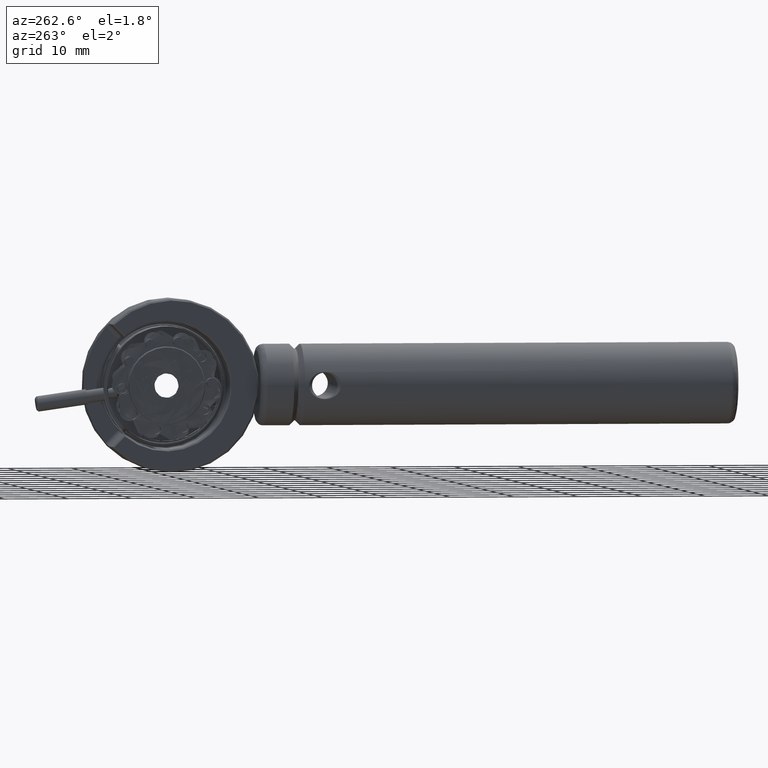
[diagram: clean part render]
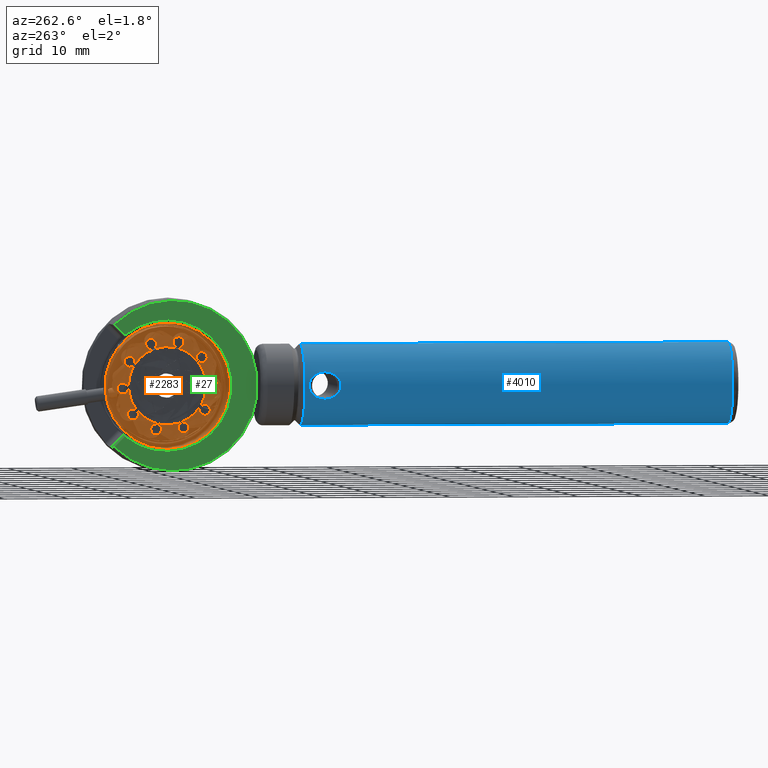
[diagram: same view with three faces highlighted in distinct colors, each labeled with its STEP entity id]
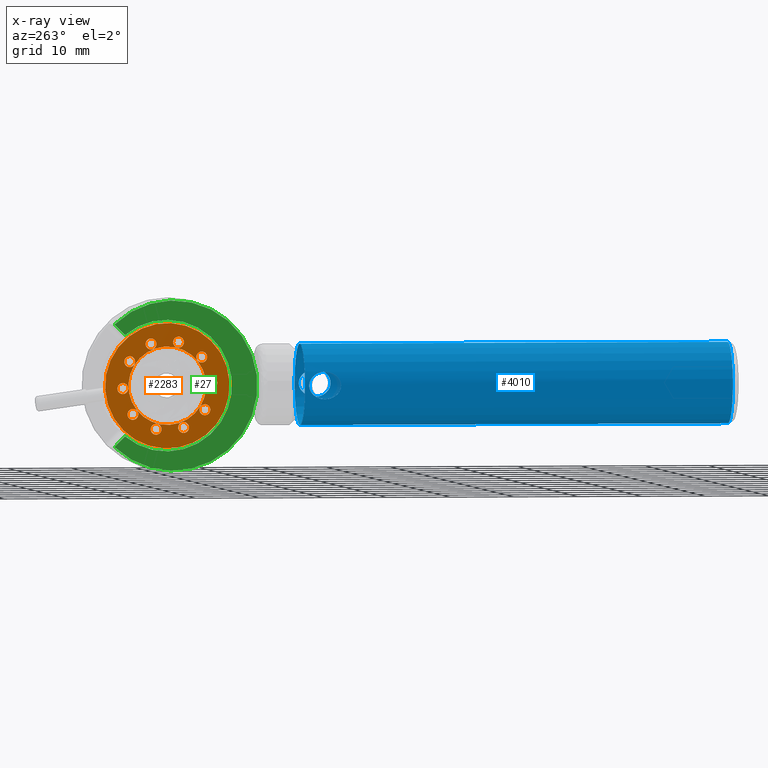
[diagram: x-ray of the same camera — body ghosted, the three highlighted faces saturated]
A machine part, auxiliary view with three faces highlighted in distinct colors.
The next image is the same camera in x-ray (body ghosted, the three faces saturated) — at least one of them is partly hidden behind the body in this view.
Their STEP definitions:

[orange] entity #2283 — the highlighted planar face has unit normal (1, 0, 0).
#59 = VERTEX_POINT ( 'NONE', #5542 ) ;
#128 = CIRCLE ( 'NONE', #365, 0.8499999999611640433 ) ;
#365 = AXIS2_PLACEMENT_3D ( 'NONE', #11731, #2733, #10845 ) ;
#640 = EDGE_LOOP ( 'NONE', ( #5820 ) ) ;
#892 = EDGE_CURVE ( 'NONE', #1799, #1799, #4693, .T. ) ;
#928 = ORIENTED_EDGE ( 'NONE', *, *, #7380, .T. ) ;
#1171 = DIRECTION ( 'NONE',  ( 0.000000000000000000, 0.06016631361091241692, 0.9981883663449866440 ) ) ;
#1173 = EDGE_CURVE ( 'NONE', #9078, #9078, #1439, .T. ) ;
#1184 = DIRECTION ( 'NONE',  ( 0.000000000000000000, 0.06016631361091307612, 0.9981883663449867550 ) ) ;
#1208 = VERTEX_POINT ( 'NONE', #11323 ) ;
#1439 = CIRCLE ( 'NONE', #9259, 0.8500000000140057743 ) ;
#1498 = CIRCLE ( 'NONE', #6652, 0.8499999999260764438 ) ;
#1773 = VERTEX_POINT ( 'NONE', #4178 ) ;
#1799 = VERTEX_POINT ( 'NONE', #5447 ) ;
#1887 = CIRCLE ( 'NONE', #11211, 9.775000000000005684 ) ;
#2065 = CIRCLE ( 'NONE', #11009, 0.8500000000140057743 ) ;
#2067 = VERTEX_POINT ( 'NONE', #3808 ) ;
#2082 = CIRCLE ( 'NONE', #9124, 0.8500000000140057743 ) ;
#2158 = ORIENTED_EDGE ( 'NONE', *, *, #6572, .T. ) ;
#2207 = DIRECTION ( 'NONE',  ( 0.000000000000000000, 0.06016631361091291652, 0.9981883663449865329 ) ) ;
#2283 = ADVANCED_FACE ( 'NONE', ( #3375, #10829, #7015, #11481, #10647, #4397, #2482, #8036, #5110, #6238, #8092, #7077 ), #2663, .T. ) ;
#2482 = FACE_BOUND ( 'NONE', #3494, .T. ) ;
#2483 = DIRECTION ( 'NONE',  ( -1.000000000000000000, -1.399727883735550094E-17, -1.375382564234869832E-17 ) ) ;
#2484 = ORIENTED_EDGE ( 'NONE', *, *, #892, .T. ) ;
#2576 = DIRECTION ( 'NONE',  ( -1.000000000000000000, -1.399727883735550094E-17, -1.375382564234869832E-17 ) ) ;
#2663 = PLANE ( 'NONE',  #4114 ) ;
#2733 = DIRECTION ( 'NONE',  ( -1.000000000000000000, -1.399727883735550094E-17, -1.375382564234869832E-17 ) ) ;
#2783 = VERTEX_POINT ( 'NONE', #8405 ) ;
#2894 = DIRECTION ( 'NONE',  ( -1.000000000000000000, -1.399727883735550094E-17, -1.375382564234869832E-17 ) ) ;
#2976 = CARTESIAN_POINT ( 'NONE',  ( 3.134389209405178622, 11.92269437540613808, -30.57200995708458180 ) ) ;
#3260 = ORIENTED_EDGE ( 'NONE', *, *, #1173, .T. ) ;
#3375 = FACE_OUTER_BOUND ( 'NONE', #6702, .T. ) ;
#3396 = AXIS2_PLACEMENT_3D ( 'NONE', #5763, #9277, #1171 ) ;
#3494 = EDGE_LOOP ( 'NONE', ( #10077 ) ) ;
#3497 = VERTEX_POINT ( 'NONE', #4520 ) ;
#3540 = AXIS2_PLACEMENT_3D ( 'NONE', #3987, #9353, #1184 ) ;
#3607 = EDGE_CURVE ( 'NONE', #1208, #1208, #5298, .T. ) ;
#3640 = EDGE_LOOP ( 'NONE', ( #2484 ) ) ;
#3696 = ORIENTED_EDGE ( 'NONE', *, *, #8892, .T. ) ;
#3808 = CARTESIAN_POINT ( 'NONE',  ( 3.134389209462022041, -0.9138963889442193178, -33.06869946432044571 ) ) ;
#3981 = EDGE_LOOP ( 'NONE', ( #928 ) ) ;
#3987 = CARTESIAN_POINT ( 'NONE',  ( 3.134389209405178622, 4.935375810991229351, -30.15084576180819198 ) ) ;
#4114 = AXIS2_PLACEMENT_3D ( 'NONE', #6121, #9749, #8863 ) ;
#4144 = AXIS2_PLACEMENT_3D ( 'NONE', #7133, #2483, #5295 ) ;
#4178 = CARTESIAN_POINT ( 'NONE',  ( 3.134389209459747860, -4.821915470031020945, -29.56272004626151784 ) ) ;
#4397 = FACE_BOUND ( 'NONE', #9298, .T. ) ;
#4404 = CARTESIAN_POINT ( 'NONE',  ( 3.134389209405178622, -2.000801386853559016, -28.88122145512458161 ) ) ;
#4520 = CARTESIAN_POINT ( 'NONE',  ( 3.134389209401191145, 2.426766043697826891, -35.81757360875523943 ) ) ;
#4681 = CARTESIAN_POINT ( 'NONE',  ( 3.134389209462022041, -0.9650377555090479120, -33.91715957563989292 ) ) ;
#4690 = CARTESIAN_POINT ( 'NONE',  ( 3.134389209409193633, 3.176726581823249074, -23.37536401592864976 ) ) ;
#4693 = CIRCLE ( 'NONE', #3540, 6.100000000003546141 ) ;
#4730 = AXIS2_PLACEMENT_3D ( 'NONE', #7491, #2894, #8394 ) ;
#4741 = CIRCLE ( 'NONE', #3396, 0.8500000000708480830 ) ;
#4796 = CARTESIAN_POINT ( 'NONE',  ( 3.134389209405178622, 11.97383574197625755, -29.72354984567736480 ) ) ;
#4911 = CIRCLE ( 'NONE', #9841, 0.8500000000140057743 ) ;
#4943 = EDGE_LOOP ( 'NONE', ( #3696 ) ) ;
#5110 = FACE_BOUND ( 'NONE', #5137, .T. ) ;
#5137 = EDGE_LOOP ( 'NONE', ( #10838 ) ) ;
#5295 = DIRECTION ( 'NONE',  ( 0.000000000000000000, 0.06016631361091238223, 0.9981883663449866440 ) ) ;
#5298 = CIRCLE ( 'NONE', #4730, 0.8500000000140057743 ) ;
#5343 = CARTESIAN_POINT ( 'NONE',  ( 3.134389209459747860, 4.935375810991229351, -30.15084576180819198 ) ) ;
#5447 = CARTESIAN_POINT ( 'NONE',  ( 3.134389209405178622, 5.302390324018012357, -24.06189672710023331 ) ) ;
#5468 = DIRECTION ( 'NONE',  ( -1.000000000000000000, -1.399727883735550094E-17, -1.375382564234869832E-17 ) ) ;
#5491 = CIRCLE ( 'NONE', #8899, 0.8500000000140057743 ) ;
#5542 = CARTESIAN_POINT ( 'NONE',  ( 3.134389209436344359, -0.4187881833848083324, -24.85461385376765975 ) ) ;
#5662 = EDGE_CURVE ( 'NONE', #5689, #5689, #2082, .T. ) ;
#5689 = VERTEX_POINT ( 'NONE', #4796 ) ;
#5733 = DIRECTION ( 'NONE',  ( 0.000000000000000000, 0.06016631361091342306, 0.9981883663449865329 ) ) ;
#5763 = CARTESIAN_POINT ( 'NONE',  ( 3.134389209430813228, 10.34068117193742076, -34.59861755844146813 ) ) ;
#5795 = CARTESIAN_POINT ( 'NONE',  ( 3.134389209401191145, 2.375624677127708306, -36.66603372016245999 ) ) ;
#5820 = ORIENTED_EDGE ( 'NONE', *, *, #7873, .T. ) ;
#5908 = DIRECTION ( 'NONE',  ( -1.000000000000000000, -1.399727883735550094E-17, -1.375382564234869832E-17 ) ) ;
#6030 = ORIENTED_EDGE ( 'NONE', *, *, #8260, .T. ) ;
#6121 = CARTESIAN_POINT ( 'NONE',  ( 3.134389209459748304, 4.935375810991229351, -30.15084576180819198 ) ) ;
#6238 = FACE_BOUND ( 'NONE', #7110, .T. ) ;
#6265 = ORIENTED_EDGE ( 'NONE', *, *, #5662, .T. ) ;
#6572 = EDGE_CURVE ( 'NONE', #1773, #1773, #1887, .T. ) ;
#6619 = DIRECTION ( 'NONE',  ( -1.000000000000000000, -1.399727883735550094E-17, -1.375382564234869832E-17 ) ) ;
#6652 = AXIS2_PLACEMENT_3D ( 'NONE', #4681, #7250, #9091 ) ;
#6702 = EDGE_LOOP ( 'NONE', ( #2158 ) ) ;
#6746 = ORIENTED_EDGE ( 'NONE', *, *, #8272, .T. ) ;
#6804 = DIRECTION ( 'NONE',  ( 0.000000000000000000, 0.06016631361091291652, 0.9981883663449865329 ) ) ;
#7015 = FACE_BOUND ( 'NONE', #640, .T. ) ;
#7077 = FACE_BOUND ( 'NONE', #4943, .T. ) ;
#7082 = VERTEX_POINT ( 'NONE', #4404 ) ;
#7110 = EDGE_LOOP ( 'NONE', ( #3260 ) ) ;
#7133 = CARTESIAN_POINT ( 'NONE',  ( 3.134389209493147366, 10.83578937749153681, -26.38453194797653367 ) ) ;
#7193 = DIRECTION ( 'NONE',  ( 0.000000000000000000, 0.06016631361091291652, 0.9981883663449865329 ) ) ;
#7204 = ORIENTED_EDGE ( 'NONE', *, *, #3607, .T. ) ;
#7250 = DIRECTION ( 'NONE',  ( -1.000000000000000000, -1.399727883735550094E-17, -1.375382564234869832E-17 ) ) ;
#7266 = VERTEX_POINT ( 'NONE', #7757 ) ;
#7380 = EDGE_CURVE ( 'NONE', #10894, #10894, #128, .T. ) ;
#7491 = CARTESIAN_POINT ( 'NONE',  ( 3.134389209401146292, 6.694025040159257145, -36.92632750768772354 ) ) ;
#7642 = DIRECTION ( 'NONE',  ( -1.000000000000000000, -1.399727883735550094E-17, -1.375382564234869832E-17 ) ) ;
#7757 = CARTESIAN_POINT ( 'NONE',  ( 3.134389209430813228, 10.39182253851095794, -33.75015744697750364 ) ) ;
#7873 = EDGE_CURVE ( 'NONE', #7266, #7266, #4741, .T. ) ;
#8036 = FACE_BOUND ( 'NONE', #9647, .T. ) ;
#8092 = FACE_BOUND ( 'NONE', #3981, .T. ) ;
#8197 = EDGE_LOOP ( 'NONE', ( #6265 ) ) ;
#8260 = EDGE_CURVE ( 'NONE', #7082, #7082, #4911, .T. ) ;
#8272 = EDGE_CURVE ( 'NONE', #3497, #3497, #5491, .T. ) ;
#8394 = DIRECTION ( 'NONE',  ( 0.000000000000000000, 0.06016631361091342306, 0.9981883663449865329 ) ) ;
#8405 = CARTESIAN_POINT ( 'NONE',  ( 3.134389209493147366, 10.88693074405823502, -25.53607183662605351 ) ) ;
#8537 = CIRCLE ( 'NONE', #4144, 0.8499999999571634657 ) ;
#8863 = DIRECTION ( 'NONE',  ( 1.457107341715755717E-17, -0.06016631361091300673, -0.9981883663449865329 ) ) ;
#8892 = EDGE_CURVE ( 'NONE', #2783, #2783, #8537, .T. ) ;
#8899 = AXIS2_PLACEMENT_3D ( 'NONE', #5795, #7642, #6804 ) ;
#8970 = DIRECTION ( 'NONE',  ( 0.000000000000000000, -0.9981883663449865329, 0.06016631361091308999 ) ) ;
#9078 = VERTEX_POINT ( 'NONE', #10024 ) ;
#9086 = DIRECTION ( 'NONE',  ( 1.000000000000000000, -7.921465372082296582E-18, 1.507498914467570747E-17 ) ) ;
#9091 = DIRECTION ( 'NONE',  ( 0.000000000000000000, 0.06016631361091318714, 0.9981883663449866440 ) ) ;
#9124 = AXIS2_PLACEMENT_3D ( 'NONE', #2976, #6619, #5733 ) ;
#9259 = AXIS2_PLACEMENT_3D ( 'NONE', #4690, #5468, #7193 ) ;
#9277 = DIRECTION ( 'NONE',  ( -1.000000000000000000, -1.399727883735550094E-17, -1.375382564234869832E-17 ) ) ;
#9298 = EDGE_LOOP ( 'NONE', ( #6746 ) ) ;
#9353 = DIRECTION ( 'NONE',  ( -1.000000000000000000, -1.399727883735550094E-17, -1.375382564234869832E-17 ) ) ;
#9647 = EDGE_LOOP ( 'NONE', ( #6030 ) ) ;
#9730 = DIRECTION ( 'NONE',  ( 0.000000000000000000, 0.06016631361091304142, 0.9981883663449865329 ) ) ;
#9749 = DIRECTION ( 'NONE',  ( 1.000000000000000000, 1.399727883735549786E-17, 1.375382564234869678E-17 ) ) ;
#9841 = AXIS2_PLACEMENT_3D ( 'NONE', #10429, #5908, #2207 ) ;
#10024 = CARTESIAN_POINT ( 'NONE',  ( 3.134389209409193633, 3.227867948393368103, -22.52690390452142921 ) ) ;
#10077 = ORIENTED_EDGE ( 'NONE', *, *, #11373, .T. ) ;
#10251 = EDGE_LOOP ( 'NONE', ( #7204 ) ) ;
#10414 = EDGE_CURVE ( 'NONE', #59, #59, #2065, .T. ) ;
#10429 = CARTESIAN_POINT ( 'NONE',  ( 3.134389209405178622, -2.051942753423677601, -29.72968156653180216 ) ) ;
#10489 = CARTESIAN_POINT ( 'NONE',  ( 3.134389209462022041, 7.546268311421734154, -22.78719769209946833 ) ) ;
#10624 = CARTESIAN_POINT ( 'NONE',  ( 3.134389209436344359, -0.4699295499549270838, -25.70307396517487675 ) ) ;
#10647 = FACE_BOUND ( 'NONE', #10251, .T. ) ;
#10829 = FACE_BOUND ( 'NONE', #3640, .T. ) ;
#10838 = ORIENTED_EDGE ( 'NONE', *, *, #10414, .T. ) ;
#10845 = DIRECTION ( 'NONE',  ( 0.000000000000000000, 0.06016631361091288877, 0.9981883663449866440 ) ) ;
#10894 = VERTEX_POINT ( 'NONE', #10489 ) ;
#11009 = AXIS2_PLACEMENT_3D ( 'NONE', #10624, #2576, #9730 ) ;
#11211 = AXIS2_PLACEMENT_3D ( 'NONE', #5343, #9086, #8970 ) ;
#11323 = CARTESIAN_POINT ( 'NONE',  ( 3.134389209401146292, 6.745166406729376618, -36.07786739628050299 ) ) ;
#11373 = EDGE_CURVE ( 'NONE', #2067, #2067, #1498, .T. ) ;
#11481 = FACE_BOUND ( 'NONE', #8197, .T. ) ;
#11731 = CARTESIAN_POINT ( 'NONE',  ( 3.134389209462022041, 7.495126944854794360, -23.63565780345393819 ) ) ;

[blue] entity #4010 — the highlighted cylindrical surface (bore or boss wall) has radius 6.35 mm, axis along (-0, -1, -0).
#31 = CARTESIAN_POINT ( 'NONE',  ( 1.291527240231731932, -20.75332920256165536, -32.04144347583603292 ) ) ;
#245 = CARTESIAN_POINT ( 'NONE',  ( 13.41797756843327427, -20.75825127492998590, -28.26255178839992510 ) ) ;
#351 = CARTESIAN_POINT ( 'NONE',  ( 1.372835869533139297, -19.56462418900877509, -28.01929242188891322 ) ) ;
#358 = CARTESIAN_POINT ( 'NONE',  ( 13.55531352513657772, -17.63888160993365872, -28.76941827803789309 ) ) ;
#417 = EDGE_CURVE ( 'NONE', #11042, #11042, #6218, .T. ) ;
#420 = CARTESIAN_POINT ( 'NONE',  ( 13.60398278631192959, -17.44061182599310200, -28.99369792276696245 ) ) ;
#520 = CARTESIAN_POINT ( 'NONE',  ( 1.004197179285744701, -17.06394439779787575, -30.00714704759063878 ) ) ;
#796 = CARTESIAN_POINT ( 'NONE',  ( 13.70465424916038266, -22.06556244145395240, -30.01055822009739416 ) ) ;
#872 = ORIENTED_EDGE ( 'NONE', *, *, #417, .T. ) ;
#915 = FACE_OUTER_BOUND ( 'NONE', #4744, .T. ) ;
#916 = CARTESIAN_POINT ( 'NONE',  ( 1.004591955490343302, -22.06390646348830842, -29.99064908882422031 ) ) ;
#1133 = CARTESIAN_POINT ( 'NONE',  ( 13.46324903020604147, -21.03060788974465112, -28.40681327520993449 ) ) ;
#1199 = CARTESIAN_POINT ( 'NONE',  ( 1.372835869535091735, -19.56462418900877509, -32.28239910173294192 ) ) ;
#1267 = ORIENTED_EDGE ( 'NONE', *, *, #6131, .T. ) ;
#1299 = CARTESIAN_POINT ( 'NONE',  ( 13.33569387584994814, -19.26378012707660758, -28.01859459258434981 ) ) ;
#1349 = CARTESIAN_POINT ( 'NONE',  ( 1.047340012004292387, -17.21983673760881572, -30.90058073085898727 ) ) ;
#1401 = CARTESIAN_POINT ( 'NONE',  ( 1.372835869492455840, -19.25734264839679355, -32.28239910177556737 ) ) ;
#1457 = CARTESIAN_POINT ( 'NONE',  ( 1.010457036994557356, -17.08592524239942279, -30.46523807945667528 ) ) ;
#1611 = CARTESIAN_POINT ( 'NONE',  ( 13.66115321633504465, -21.90834865724539071, -30.90294298335363621 ) ) ;
#1664 = AXIS2_PLACEMENT_3D ( 'NONE', #8070, #10802, #3592 ) ;
#1682 = CARTESIAN_POINT ( 'NONE',  ( 1.152694842087756300, -21.49372009020991570, -28.77282813814393592 ) ) ;
#1710 = ORIENTED_EDGE ( 'NONE', *, *, #11723, .T. ) ;
#1840 = DIRECTION ( 'NONE',  ( 0.000000000000000000, 0.000000000000000000, -1.000000000000000000 ) ) ;
#1862 = CARTESIAN_POINT ( 'NONE',  ( 1.246314421522183302, -21.02621311636960755, -31.89759283142471702 ) ) ;
#1999 = EDGE_CURVE ( 'NONE', #10434, #10434, #6206, .T. ) ;
#2013 = CARTESIAN_POINT ( 'NONE',  ( 13.33594254942705248, -19.25761856597899424, -32.28239910177559580 ) ) ;
#2248 = CARTESIAN_POINT ( 'NONE',  ( 13.33619664602172961, -19.87873437848228519, -28.02000546917021495 ) ) ;
#2567 = CARTESIAN_POINT ( 'NONE',  ( 13.41663614309719144, -20.74968674051113382, -32.04342192349269425 ) ) ;
#2911 = CARTESIAN_POINT ( 'NONE',  ( 13.35302444074147488, -18.96451833444956137, -28.06542472690089340 ) ) ;
#3032 = CARTESIAN_POINT ( 'NONE',  ( 13.70465487520403691, -17.06368372032905611, -30.29140053410811717 ) ) ;
#3077 = B_SPLINE_CURVE_WITH_KNOTS ( 'NONE', 3,
 ( #7053, #10681, #7112, #10738, #6215, #1682, #5333, #7417, #4487, #8311, #916, #3525, #9253, #6519, #9144, #4611, #3652, #7349, #11694, #1862, #31, #8132, #5571, #7172, #10147, #10982 ),
 .UNSPECIFIED., .F., .F.,
 ( 4, 2, 2, 2, 2, 2, 2, 2, 2, 2, 2, 2, 4 ),
 ( 3.473642879182403704E-15, 0.0009087577897568783298, 0.001817515579510282876, 0.002726273369263687747, 0.003180652264140390074, 0.003635031159017092402, 0.004089410053893794729, 0.004543788948770497056, 0.004998167843647199383, 0.005452546738523901711, 0.006361304528277293355, 0.006815683423153988743, 0.007270062318030684999 ),
 .UNSPECIFIED. ) ;
#3085 = CARTESIAN_POINT ( 'NONE',  ( 13.67856357765069042, -17.15726015781073599, -30.74191418526542918 ) ) ;
#3133 = CARTESIAN_POINT ( 'NONE',  ( 1.372835869492455618, -19.41070700471896515, -28.01929242184079882 ) ) ;
#3250 = CARTESIAN_POINT ( 'NONE',  ( 1.175247363113716137, -17.74885674654674261, -28.68455562073840071 ) ) ;
#3464 = CARTESIAN_POINT ( 'NONE',  ( 13.70410325775895011, -22.06361190762263291, -30.31418030694502974 ) ) ;
#3468 = FACE_BOUND ( 'NONE', #4459, .T. ) ;
#3521 = CARTESIAN_POINT ( 'NONE',  ( 13.55874777747689564, -21.49414303888433508, -28.79354571813647112 ) ) ;
#3525 = CARTESIAN_POINT ( 'NONE',  ( 1.004197179285783781, -22.06530398016303707, -30.29454447602509504 ) ) ;
#3592 = DIRECTION ( 'NONE',  ( 0.000000000000000000, 0.000000000000000000, -1.000000000000000000 ) ) ;
#3597 = CIRCLE ( 'NONE', #6258, 6.350000000000001421 ) ;
#3652 = CARTESIAN_POINT ( 'NONE',  ( 1.104663487729192539, -21.68683755642548405, -31.28099646030681313 ) ) ;
#3869 = CARTESIAN_POINT ( 'NONE',  ( 13.46266920041018267, -18.10185004976860768, -31.89691168294429957 ) ) ;
#3988 = CARTESIAN_POINT ( 'NONE',  ( 13.69814503845824660, -17.08654975395894837, -29.83290095626105654 ) ) ;
#4010 = ADVANCED_FACE ( 'NONE', ( #915, #6331, #3468, #10922 ), #10023, .T. ) ;
#4039 = CARTESIAN_POINT ( 'NONE',  ( 13.69927736213167435, -17.08253758708108450, -30.44569767476623312 ) ) ;
#4145 = CARTESIAN_POINT ( 'NONE',  ( 1.372835869535091735, -19.56462418900877509, -32.28239910173294192 ) ) ;
#4277 = ORIENTED_EDGE ( 'NONE', *, *, #9072, .T. ) ;
#4368 = CARTESIAN_POINT ( 'NONE',  ( 13.69816739598955202, -22.04277655745302766, -30.46823141840959082 ) ) ;
#4377 = B_SPLINE_CURVE_WITH_KNOTS ( 'NONE', 3,
 ( #4145, #1401, #5039, #11473, #10402, #8681, #5100, #1349, #5938, #1457, #9563, #520, #7620, #4932, #7849, #7790, #10293, #11416, #3250, #8576, #6893, #6838, #8515, #8742, #3133, #351 ),
 .UNSPECIFIED., .F., .F.,
 ( 4, 2, 2, 2, 2, 2, 2, 2, 2, 2, 2, 2, 4 ),
 ( 4.448726389209795537E-15, 0.0009087577897704521073, 0.001817515579536455516, 0.002726273369302458817, 0.003180652264185460792, 0.003635031159068462334, 0.004089410053951463876, 0.004543788948834464984, 0.004998167843717467827, 0.005452546738600468935, 0.006361304528366478958, 0.006815683423249488740, 0.007270062318132498522 ),
 .UNSPECIFIED. ) ;
#4427 = CARTESIAN_POINT ( 'NONE',  ( 13.55577024615603676, -21.49231894348713112, -31.53022326885329818 ) ) ;
#4458 = VERTEX_POINT ( 'NONE', #5012 ) ;
#4459 = EDGE_LOOP ( 'NONE', ( #872 ) ) ;
#4487 = CARTESIAN_POINT ( 'NONE',  ( 1.031936958932750503, -21.96570685507679599, -29.54181745537168169 ) ) ;
#4571 = CARTESIAN_POINT ( 'NONE',  ( 7.354389209459749388, -83.56462418900876798, -30.15084576180818843 ) ) ;
#4611 = CARTESIAN_POINT ( 'NONE',  ( 1.083047880577675315, -21.77246207800832778, -31.15652696153349765 ) ) ;
#4710 = CARTESIAN_POINT ( 'NONE',  ( 13.45989260930768694, -18.11733557703452746, -28.39510304258267581 ) ) ;
#4744 = EDGE_LOOP ( 'NONE', ( #1267 ) ) ;
#4932 = CARTESIAN_POINT ( 'NONE',  ( 1.030461387064242285, -17.15815882468401199, -29.55719811194349234 ) ) ;
#5012 = CARTESIAN_POINT ( 'NONE',  ( 7.354389209459749388, -83.56462418900876798, -36.50084576180819340 ) ) ;
#5039 = CARTESIAN_POINT ( 'NONE',  ( 1.355306333364949545, -18.95866507042896387, -32.23500609477163437 ) ) ;
#5100 = CARTESIAN_POINT ( 'NONE',  ( 1.104122766806293399, -17.43791757607469961, -31.30434383619090610 ) ) ;
#5262 = CARTESIAN_POINT ( 'NONE',  ( 13.67658929996674289, -21.96478566474994309, -30.76243496258022603 ) ) ;
#5327 = CARTESIAN_POINT ( 'NONE',  ( 13.66357420130988132, -21.91734557973786224, -29.41919102289998733 ) ) ;
#5333 = CARTESIAN_POINT ( 'NONE',  ( 1.104122766803516953, -21.69133080190279372, -28.99734768744127678 ) ) ;
#5571 = CARTESIAN_POINT ( 'NONE',  ( 1.351455856979645542, -20.17333511163512227, -32.22158341891714173 ) ) ;
#5654 = EDGE_LOOP ( 'NONE', ( #7097 ) ) ;
#5665 = CARTESIAN_POINT ( 'NONE',  ( 13.33594254942704538, -19.56462418900878220, -32.28239910177558158 ) ) ;
#5777 = CARTESIAN_POINT ( 'NONE',  ( 13.62604814534925879, -17.35553875349428310, -31.15457627373719163 ) ) ;
#5831 = CARTESIAN_POINT ( 'NONE',  ( 13.67649426529264112, -17.16480909257043308, -29.53821652618596616 ) ) ;
#5938 = CARTESIAN_POINT ( 'NONE',  ( 1.031936958933630022, -17.16354152288899115, -30.75987406825422354 ) ) ;
#6131 = EDGE_CURVE ( 'NONE', #4458, #4458, #3597, .T. ) ;
#6206 = CIRCLE ( 'NONE', #10207, 6.350000000000001421 ) ;
#6215 = CARTESIAN_POINT ( 'NONE',  ( 1.248111548589572406, -21.01629471872567123, -28.39775742239667267 ) ) ;
#6218 = B_SPLINE_CURVE_WITH_KNOTS ( 'NONE', 3,
 ( #8010, #7049, #10676, #2567, #9779, #4427, #7166, #1611, #5262, #4368, #3464, #796, #7106, #10734, #5327, #8065, #11689, #3521, #8522, #1133, #245, #10407, #2248, #1299, #2911, #7627, #4710, #358, #420, #10182, #5831, #3988, #10241, #3032, #4039, #3085, #9407, #5777, #8581, #6784, #11303, #3869, #10299, #9461, #2013, #5665 ),
 .UNSPECIFIED., .T., .F.,
 ( 4, 2, 2, 2, 2, 2, 2, 2, 2, 2, 2, 2, 2, 2, 2, 2, 2, 2, 2, 2, 2, 2, 4 ),
 ( 0.000000000000000000, 0.0009079417880899828125, 0.001815883576179965625, 0.002723825364269948004, 0.003177796258314935507, 0.003631767152359923010, 0.004085738046404910513, 0.004539708940449897583, 0.004993679834494885519, 0.005447650728539871721, 0.006355592516629845860, 0.007263534304719819999, 0.008171476092809793271, 0.009079417880899767410, 0.009987359668989739814, 0.01044133056303472688, 0.01089530145707971222, 0.01134927235112469929, 0.01180324324516968462, 0.01225721413921467169, 0.01271118503325965876, 0.01361912682134964157, 0.01452706860943962439 ),
 .UNSPECIFIED. ) ;
#6258 = AXIS2_PLACEMENT_3D ( 'NONE', #4571, #10755, #10641 ) ;
#6331 = FACE_OUTER_BOUND ( 'NONE', #5654, .T. ) ;
#6333 = VERTEX_POINT ( 'NONE', #9165 ) ;
#6519 = CARTESIAN_POINT ( 'NONE',  ( 1.030461387063661860, -21.97108955328058855, -30.74449341166619831 ) ) ;
#6576 = CARTESIAN_POINT ( 'NONE',  ( 7.354389209459749388, -16.41462418900876941, -36.50084576180819340 ) ) ;
#6784 = CARTESIAN_POINT ( 'NONE',  ( 13.55831896454366969, -17.63699387456729539, -31.51011449551514332 ) ) ;
#6838 = CARTESIAN_POINT ( 'NONE',  ( 1.338810188005470803, -18.80664000337501207, -28.11667571478929517 ) ) ;
#6893 = CARTESIAN_POINT ( 'NONE',  ( 1.291527240235382790, -18.37591917543545605, -28.26024804776866262 ) ) ;
#7049 = CARTESIAN_POINT ( 'NONE',  ( 13.33594254942704005, -19.87162981203857015, -32.28239910177556737 ) ) ;
#7053 = CARTESIAN_POINT ( 'NONE',  ( 1.372835869533139297, -19.56462418900877509, -28.01929242188891322 ) ) ;
#7097 = ORIENTED_EDGE ( 'NONE', *, *, #1999, .T. ) ;
#7106 = CARTESIAN_POINT ( 'NONE',  ( 13.69929715925397851, -22.04677962649476797, -29.85654342825993268 ) ) ;
#7112 = CARTESIAN_POINT ( 'NONE',  ( 1.355306333361074422, -20.17058330757904727, -28.06668542885587669 ) ) ;
#7166 = CARTESIAN_POINT ( 'NONE',  ( 13.60430734427364996, -21.68992764549316021, -31.30614363873020878 ) ) ;
#7172 = CARTESIAN_POINT ( 'NONE',  ( 1.368449977804816253, -19.87106018425488685, -32.27020764544707987 ) ) ;
#7292 = CARTESIAN_POINT ( 'NONE',  ( 13.33594254942704183, -19.56462418900877509, -32.28239910177556737 ) ) ;
#7313 = EDGE_LOOP ( 'NONE', ( #1710, #4277 ) ) ;
#7349 = CARTESIAN_POINT ( 'NONE',  ( 1.150762782188058830, -21.49090886391290667, -31.51148213830034450 ) ) ;
#7417 = CARTESIAN_POINT ( 'NONE',  ( 1.047340012003005860, -21.90941164035935884, -29.40111079276849892 ) ) ;
#7620 = CARTESIAN_POINT ( 'NONE',  ( 1.009646582809408111, -17.08305344690523953, -29.85298398744969006 ) ) ;
#7627 = CARTESIAN_POINT ( 'NONE',  ( 13.41603014183855436, -18.38364347432269597, -28.25634985584323999 ) ) ;
#7790 = CARTESIAN_POINT ( 'NONE',  ( 1.083047880579338651, -17.35678629996350253, -29.14516456207233830 ) ) ;
#7849 = CARTESIAN_POINT ( 'NONE',  ( 1.045637687556919548, -17.21351018462558002, -29.41547444491150642 ) ) ;
#8010 = CARTESIAN_POINT ( 'NONE',  ( 13.33594254942704538, -19.56462418900878220, -32.28239910177558158 ) ) ;
#8065 = CARTESIAN_POINT ( 'NONE',  ( 13.62630339638725552, -21.77470738968011332, -29.14873481477127370 ) ) ;
#8070 = CARTESIAN_POINT ( 'NONE',  ( 7.354389209459749388, -9.564624189008775090, -30.15084576180818843 ) ) ;
#8132 = CARTESIAN_POINT ( 'NONE',  ( 1.338810188001693380, -20.32260837462943215, -32.18501580881590485 ) ) ;
#8311 = CARTESIAN_POINT ( 'NONE',  ( 1.010457036994278912, -22.04332313556295730, -29.83645344416608935 ) ) ;
#8515 = CARTESIAN_POINT ( 'NONE',  ( 1.351455856983452497, -18.95591326637179819, -28.08010810468821106 ) ) ;
#8522 = CARTESIAN_POINT ( 'NONE',  ( 13.53428746470233790, -21.38391426423357444, -28.68773709844473530 ) ) ;
#8576 = CARTESIAN_POINT ( 'NONE',  ( 1.246314421525695826, -18.10303526162228849, -28.40409869217937100 ) ) ;
#8581 = CARTESIAN_POINT ( 'NONE',  ( 13.60443345316568120, -17.44111427584702056, -31.27925297915806624 ) ) ;
#8681 = CARTESIAN_POINT ( 'NONE',  ( 1.152694842091051664, -17.63552828777331527, -31.52886338548715983 ) ) ;
#8742 = CARTESIAN_POINT ( 'NONE',  ( 1.368449977808658957, -19.25818819375640345, -28.03148387815843634 ) ) ;
#9072 = EDGE_CURVE ( 'NONE', #10997, #6333, #4377, .T. ) ;
#9144 = CARTESIAN_POINT ( 'NONE',  ( 1.045637687555979634, -21.91573819334121609, -30.88621707869659261 ) ) ;
#9165 = CARTESIAN_POINT ( 'NONE',  ( 1.372835869533139297, -19.56462418900877509, -28.01929242188891322 ) ) ;
#9235 = CARTESIAN_POINT ( 'NONE',  ( 7.354389209459749388, -16.41462418900876941, -30.15084576180818843 ) ) ;
#9253 = CARTESIAN_POINT ( 'NONE',  ( 1.009646582809328841, -22.04619493105638384, -30.44870753616401160 ) ) ;
#9407 = CARTESIAN_POINT ( 'NONE',  ( 13.66342834948542162, -17.21244030715340045, -30.88378905997253554 ) ) ;
#9461 = CARTESIAN_POINT ( 'NONE',  ( 13.35424119028566459, -18.94966371820868645, -32.23278399824006613 ) ) ;
#9563 = CARTESIAN_POINT ( 'NONE',  ( 1.004591955490385491, -17.06534191447290638, -30.31104243479597571 ) ) ;
#9779 = CARTESIAN_POINT ( 'NONE',  ( 13.46046620807708294, -21.01512315872436432, -31.90459396385848834 ) ) ;
#10023 = CYLINDRICAL_SURFACE ( 'NONE', #1664, 6.350000000000001421 ) ;
#10147 = CARTESIAN_POINT ( 'NONE',  ( 1.372835869488549854, -19.71854137329638590, -32.28239910176461080 ) ) ;
#10182 = CARTESIAN_POINT ( 'NONE',  ( 13.66100737266180154, -17.22143826311856785, -29.39748987454282414 ) ) ;
#10207 = AXIS2_PLACEMENT_3D ( 'NONE', #9235, #10962, #1840 ) ;
#10241 = CARTESIAN_POINT ( 'NONE',  ( 13.70410261032811405, -17.06563876234104526, -29.98723220375220322 ) ) ;
#10293 = CARTESIAN_POINT ( 'NONE',  ( 1.104663487731221361, -17.44241082154916000, -29.02069506329829451 ) ) ;
#10299 = CARTESIAN_POINT ( 'NONE',  ( 13.41738743100931330, -18.37491934642830316, -32.04101590696038926 ) ) ;
#10402 = CARTESIAN_POINT ( 'NONE',  ( 1.248111548593319853, -18.11295365926780931, -31.90393410123267159 ) ) ;
#10407 = CARTESIAN_POINT ( 'NONE',  ( 13.35467264825523159, -20.18493751566225569, -28.07013516895635874 ) ) ;
#10434 = VERTEX_POINT ( 'NONE', #6576 ) ;
#10641 = DIRECTION ( 'NONE',  ( 0.000000000000000000, 0.000000000000000000, -1.000000000000000000 ) ) ;
#10676 = CARTESIAN_POINT ( 'NONE',  ( 13.35344046320919098, -20.17004644458190299, -32.23508818222390460 ) ) ;
#10681 = CARTESIAN_POINT ( 'NONE',  ( 1.372835869488550742, -19.87190572961649693, -28.01929242185176960 ) ) ;
#10734 = CARTESIAN_POINT ( 'NONE',  ( 13.67865448458666222, -21.97231872287467525, -29.56081230113172253 ) ) ;
#10738 = CARTESIAN_POINT ( 'NONE',  ( 1.292003441201159841, -20.75071266862621755, -28.25870452908586117 ) ) ;
#10755 = DIRECTION ( 'NONE',  ( 0.000000000000000000, 1.000000000000000000, 0.000000000000000000 ) ) ;
#10802 = DIRECTION ( 'NONE',  ( -0.000000000000000000, -1.000000000000000000, -0.000000000000000000 ) ) ;
#10922 = FACE_BOUND ( 'NONE', #7313, .T. ) ;
#10962 = DIRECTION ( 'NONE',  ( -0.000000000000000000, -1.000000000000000000, -0.000000000000000000 ) ) ;
#10982 = CARTESIAN_POINT ( 'NONE',  ( 1.372835869535091735, -19.56462418900877509, -32.28239910173294192 ) ) ;
#10997 = VERTEX_POINT ( 'NONE', #1199 ) ;
#11042 = VERTEX_POINT ( 'NONE', #7292 ) ;
#11303 = CARTESIAN_POINT ( 'NONE',  ( 13.53381205501121265, -17.74753825219541170, -31.61596212513104120 ) ) ;
#11416 = CARTESIAN_POINT ( 'NONE',  ( 1.150762782190741129, -17.63833951406763845, -28.79020938530374707 ) ) ;
#11473 = CARTESIAN_POINT ( 'NONE',  ( 1.292003441205093139, -18.37853570937302550, -32.04298699454307098 ) ) ;
#11689 = CARTESIAN_POINT ( 'NONE',  ( 13.60474793683693839, -21.68940175988474905, -29.02419389535662475 ) ) ;
#11694 = CARTESIAN_POINT ( 'NONE',  ( 1.175247363110794030, -21.38039163143664467, -31.61713590286565534 ) ) ;
#11723 = EDGE_CURVE ( 'NONE', #6333, #10997, #3077, .T. ) ;

[green] entity #27 — the highlighted planar face has unit normal (-1, -0, -0).
#27 = ADVANCED_FACE ( 'NONE', ( #255 ), #3041, .T. ) ;
#255 = FACE_OUTER_BOUND ( 'NONE', #9806, .T. ) ;
#612 = CARTESIAN_POINT ( 'NONE',  ( 3.874389209459748518, 3.935375810991228018, -30.15084576180818843 ) ) ;
#1097 = CARTESIAN_POINT ( 'NONE',  ( 3.874389209459747185, 4.935375810991228462, -30.15084576180818488 ) ) ;
#1324 = ORIENTED_EDGE ( 'NONE', *, *, #5336, .F. ) ;
#2044 = LINE ( 'NONE', #7602, #6411 ) ;
#2107 = DIRECTION ( 'NONE',  ( 1.962299416301521652E-17, -0.7071067811865523467, -0.7071067811865426878 ) ) ;
#2198 = CARTESIAN_POINT ( 'NONE',  ( 3.874389209459748518, 3.935375810991228018, -30.15084576180818843 ) ) ;
#2881 = EDGE_CURVE ( 'NONE', #3858, #7476, #2044, .T. ) ;
#3041 = PLANE ( 'NONE',  #8884 ) ;
#3265 = CARTESIAN_POINT ( 'NONE',  ( 3.874389209459748518, 11.47477700324024319, -38.04380034465056326 ) ) ;
#3858 = VERTEX_POINT ( 'NONE', #4374 ) ;
#3989 = CARTESIAN_POINT ( 'NONE',  ( 3.874389209459748074, 11.47477700324024497, -22.25789117896581715 ) ) ;
#4374 = CARTESIAN_POINT ( 'NONE',  ( 3.874389209459747629, 13.12609611329214943, -20.60657206891393756 ) ) ;
#4692 = CARTESIAN_POINT ( 'NONE',  ( 3.874389209459747185, 11.47477700324024141, -38.04380034465056326 ) ) ;
#5193 = DIRECTION ( 'NONE',  ( 1.000000000000000000, -2.064975569837148555E-18, 1.375382564234868908E-17 ) ) ;
#5336 = EDGE_CURVE ( 'NONE', #3858, #7633, #7346, .T. ) ;
#5629 = DIRECTION ( 'NONE',  ( 0.000000000000000000, -8.462065736472219988E-17, 1.000000000000000000 ) ) ;
#5881 = ORIENTED_EDGE ( 'NONE', *, *, #10487, .T. ) ;
#6073 = LINE ( 'NONE', #3265, #8161 ) ;
#6328 = ORIENTED_EDGE ( 'NONE', *, *, #10129, .T. ) ;
#6411 = VECTOR ( 'NONE', #2107, 1000.000000000000000 ) ;
#6563 = DIRECTION ( 'NONE',  ( -1.000000000000000000, -1.399727883735551326E-17, -1.375382564234869062E-17 ) ) ;
#6683 = DIRECTION ( 'NONE',  ( -1.375382564234868908E-17, -5.551115123125782702E-17, 1.000000000000000000 ) ) ;
#7346 = CIRCLE ( 'NONE', #10382, 13.24999999999999112 ) ;
#7476 = VERTEX_POINT ( 'NONE', #3989 ) ;
#7601 = AXIS2_PLACEMENT_3D ( 'NONE', #1097, #9148, #5629 ) ;
#7602 = CARTESIAN_POINT ( 'NONE',  ( 3.874389209459748074, 13.12609611329215298, -20.60657206891393400 ) ) ;
#7633 = VERTEX_POINT ( 'NONE', #10523 ) ;
#7726 = VERTEX_POINT ( 'NONE', #4692 ) ;
#8161 = VECTOR ( 'NONE', #8699, 1000.000000000000000 ) ;
#8211 = ORIENTED_EDGE ( 'NONE', *, *, #2881, .T. ) ;
#8378 = CIRCLE ( 'NONE', #7601, 10.25000000000001243 ) ;
#8699 = DIRECTION ( 'NONE',  ( -1.721474050908302163E-19, 0.7071067811865465735, -0.7071067811865484609 ) ) ;
#8884 = AXIS2_PLACEMENT_3D ( 'NONE', #2198, #6563, #6683 ) ;
#9148 = DIRECTION ( 'NONE',  ( 1.000000000000000000, 1.399727883735551326E-17, 1.375382564234869062E-17 ) ) ;
#9590 = DIRECTION ( 'NONE',  ( 0.000000000000000000, 1.000000000000000000, 0.000000000000000000 ) ) ;
#9806 = EDGE_LOOP ( 'NONE', ( #5881, #6328, #1324, #8211 ) ) ;
#10129 = EDGE_CURVE ( 'NONE', #7726, #7633, #6073, .T. ) ;
#10382 = AXIS2_PLACEMENT_3D ( 'NONE', #612, #5193, #9590 ) ;
#10487 = EDGE_CURVE ( 'NONE', #7476, #7726, #8378, .T. ) ;
#10523 = CARTESIAN_POINT ( 'NONE',  ( 3.874389209459748074, 13.12609611329213344, -39.69511945470245706 ) ) ;